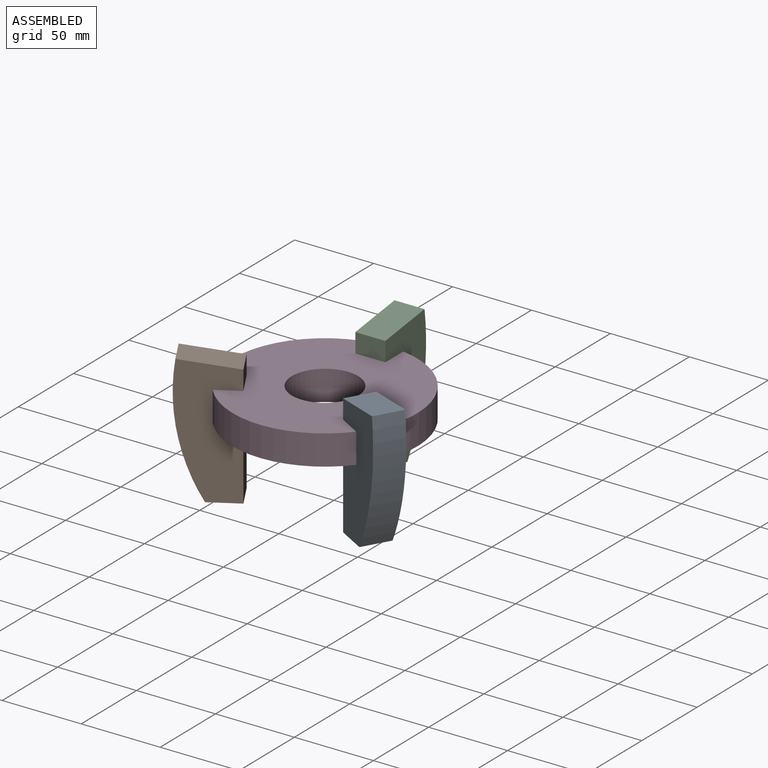
[diagram: assembled view]
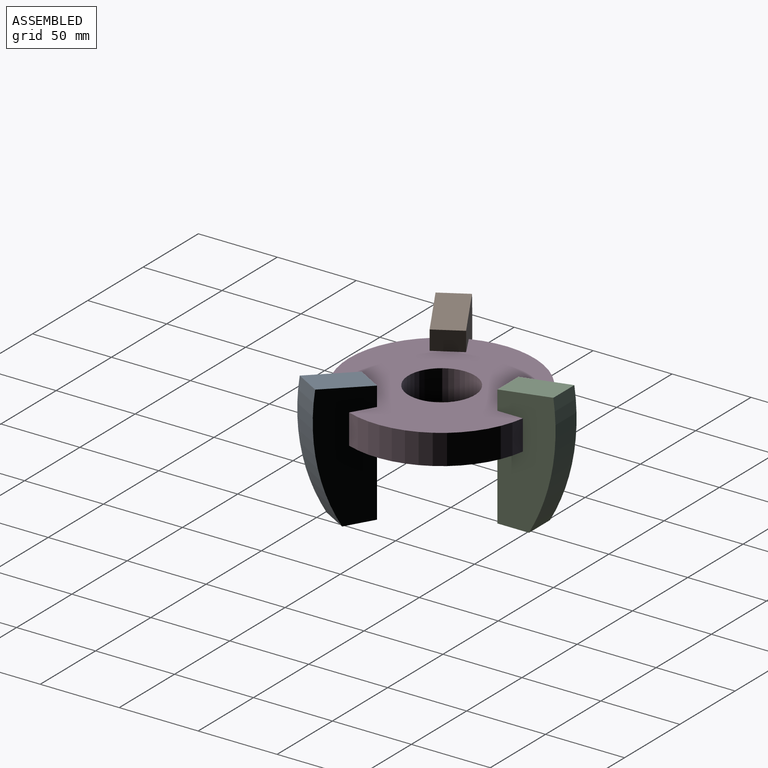
[diagram: assembled view, second angle]
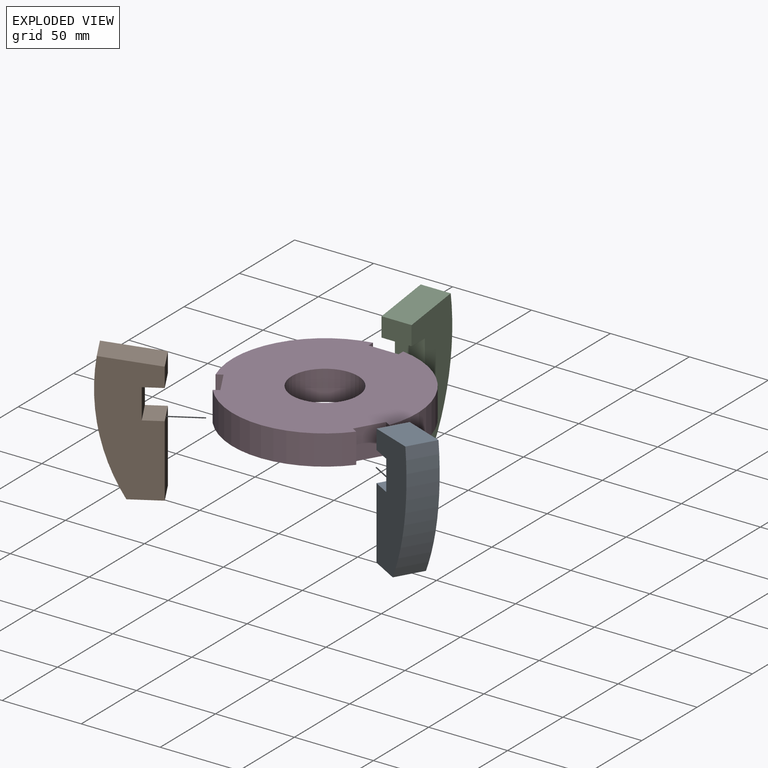
[diagram: exploded view]
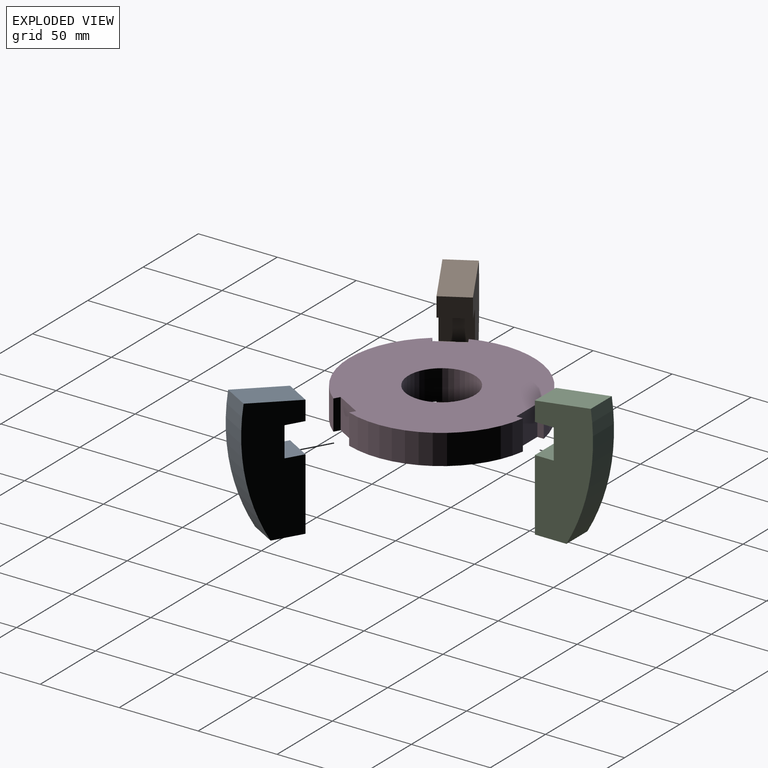
[diagram: exploded view, second angle]
ASSEMBLY  parts=4 mates=3
PART A: 10 faces, bbox 36.8x19x81.4 mm
  f0: cylinder r=125.18mm len=81.39mm, axis (0,1,0), area 1604.2mm2, adj f1,f7,f8,f9
  f1: plane 35.42x19mm, normal (-0.13,0,0.99), area 678.8mm2, adj f0,f2,f8,f9
  f2: plane 19x12.21mm, normal (-1,0,0), area 232.1mm2, adj f1,f3,f8,f9
  f3: plane 19x12mm, normal (0,0,-1), area 228mm2, adj f2,f4,f8,f9
  f4: plane 19x19mm, normal (-1,0,0), area 361mm2, adj f3,f5,f8,f9
  f5: plane 19x12mm, normal (0,0,1), area 228mm2, adj f4,f6,f8,f9
  f6: plane 45.49x19mm, normal (-1,0,0), area 864.3mm2, adj f5,f7,f8,f9
  f7: plane 20x19mm, normal (0,0,-1), area 380mm2, adj f0,f6,f8,f9
  f8: plane 81.39x36.83mm, normal (0,-1,0), area 2336mm2, adj f0,f1,f2,f3,f4,f5,f6,f7
  f9: plane 81.39x36.83mm, normal (0,1,0), area 2336mm2, adj f0,f1,f2,f3,f4,f5,f6,f7
PART B: same geometry as A
PART C: same geometry as A
PART D: 15 faces, bbox 117x116.3x19 mm
  f0: cylinder r=58.5mm len=78.7mm, axis (0,0,-1), area 1965.3mm2, adj f3,f4,f10,f12
  f1: cylinder r=58.5mm len=90.48mm, axis (0,0,-1), area 1965.3mm2, adj f3,f4,f7,f9
  f2: cylinder r=58.5mm len=78.01mm, axis (0,0,-1), area 1965.3mm2, adj f3,f4,f6,f13
  f3: plane 117x116.29mm, normal (0,0,-1), area 9103.1mm2, adj f0,f1,f2,f5,f6,f7,f8,f9
  f4: plane 117x116.29mm, normal (0,0,1), area 9103.1mm2, adj f0,f1,f2,f5,f6,f7,f8,f9
  f5: cylinder r=21mm len=42mm, axis (0,0,1), area 2507mm2, adj f3,f4
  f6: plane 19x3.48mm, normal (-0.5,-0.87,0), area 76.4mm2, adj f2,f3,f4,f8
  f7: plane 19x3.61mm, normal (0.5,0.87,0), area 79.1mm2, adj f1,f3,f4,f8
  f8: plane 19x16.45mm, normal (0.87,-0.5,0), area 361mm2, adj f3,f4,f6,f7
  f9: plane 19x3.48mm, normal (-0.5,0.87,0), area 76.4mm2, adj f1,f3,f4,f11
  f10: plane 19x3.61mm, normal (0.5,-0.87,0), area 79.1mm2, adj f0,f3,f4,f11
  f11: plane 19x16.45mm, normal (-0.87,-0.5,0), area 361mm2, adj f3,f4,f9,f10
  f12: plane 19x4.02mm, normal (1,0,0), area 76.4mm2, adj f0,f3,f4,f14
  f13: plane 19x4.16mm, normal (-1,0,0), area 79.1mm2, adj f2,f3,f4,f14
  f14: plane 19x19mm, normal (0,1,0), area 361mm2, adj f3,f4,f12,f13
PLACE A rot(axis=(0,0,-1),30deg) t=(91.36,-48.45,-42.16)mm
PLACE B rot(axis=(0,0,-1),150deg) t=(-83.56,-65.67,-42.16)mm
PLACE C rot(axis=(0,0,1),90deg) t=(-11.02,94.43,-42.16)mm
PLACE D t=(-1.07,-6.56,7.78)mm
MATE fastened C.f4 <-> D.f14  axis (0,-1,0) through (-1.52,47.07,17.28)mm
MATE fastened B.f4 <-> D.f11  axis (0.87,0.5,0) through (-47.3,-33.76,17.28)mm
MATE parallel D.f8 <-> A.f4  axis (0.87,-0.5,0) through (45.59,-32.99,17.28)mm
